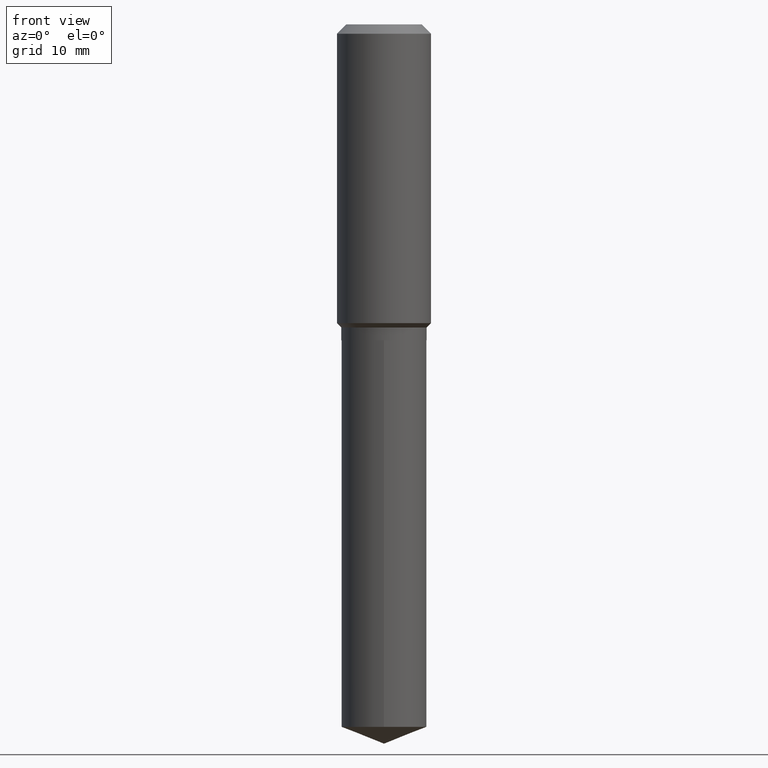
[diagram: clean part render]
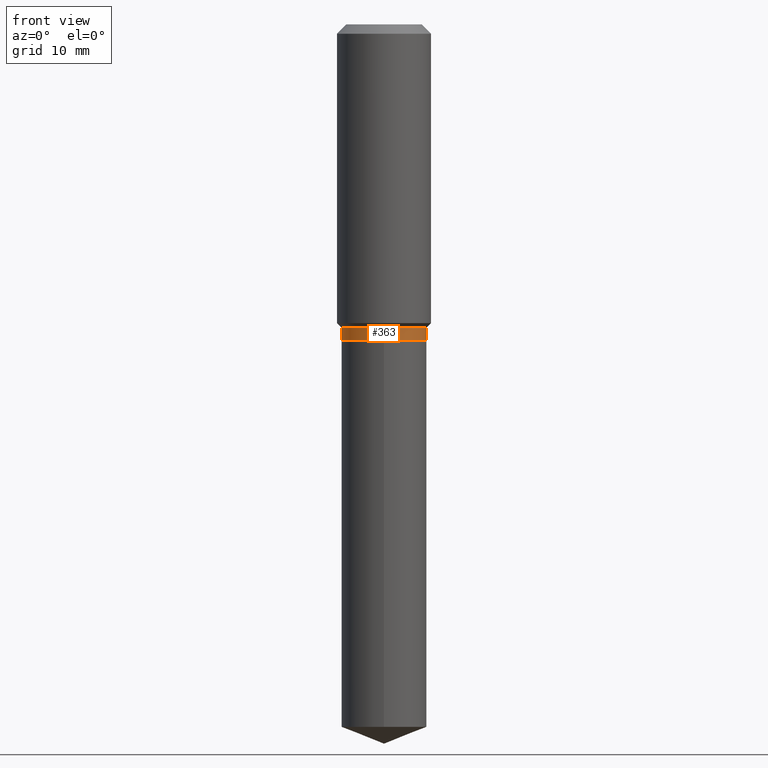
[diagram: same view with one face highlighted and labeled with its STEP entity id]
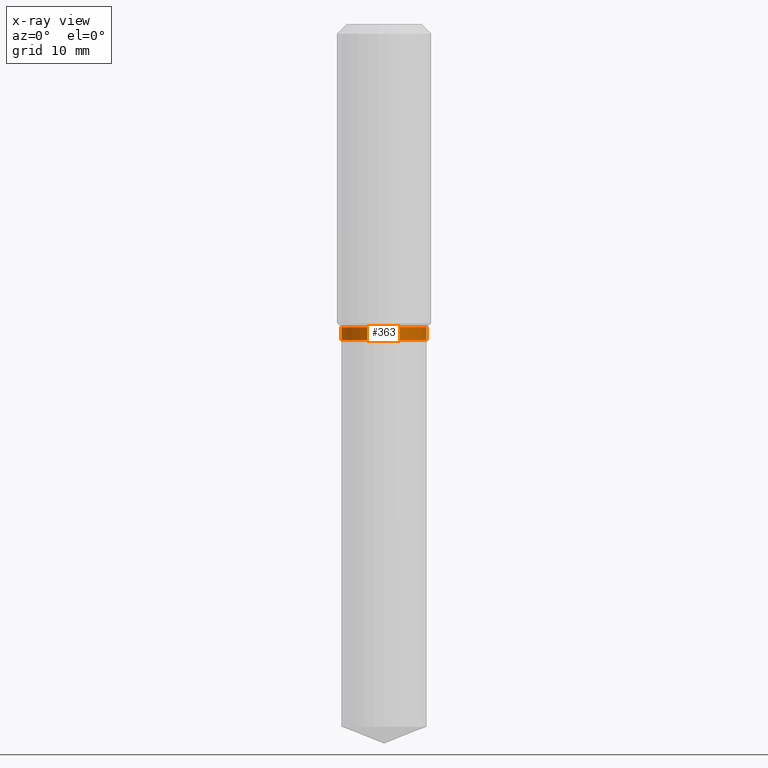
[diagram: x-ray of the same camera — body ghosted, the highlighted face saturated]
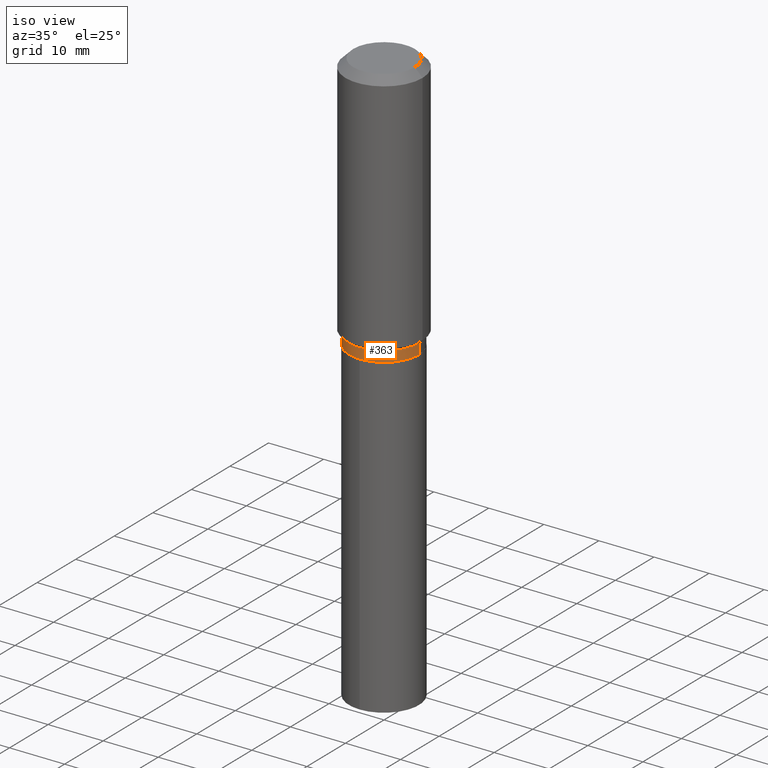
[diagram: same view with one face highlighted and labeled with its STEP entity id]
A machine part, front view. The second image highlights one B-rep face of the part: STEP entity #363.
The next image is the same camera in x-ray: the body ghosted, the highlighted face saturated — about 0% of this face is hidden behind the body in this view.
A second angle (iso view) of the same face is appended — the face is thin or edge-on in the first view.
In plain terms, the highlighted cylindrical surface (partial cylindrical patch) has radius 6.35 mm, axis along (-0, 0, 1).
Its self-contained STEP definition (entity closure, byte-faithful):
#11 = VERTEX_POINT ( 'NONE', #286 ) ;
#12 = CARTESIAN_POINT ( 'NONE',  ( 0.2500000000000000555, -8.204631998147503539E-15, -1.849900000000000322 ) ) ;
#20 = LINE ( 'NONE', #142, #196 ) ;
#37 = AXIS2_PLACEMENT_3D ( 'NONE', #321, #361, #401 ) ;
#39 = DIRECTION ( 'NONE',  ( 1.000000000000000000, -6.982962677686265133E-15, 0.000000000000000000 ) ) ;
#50 = CARTESIAN_POINT ( 'NONE',  ( 4.341685318501092485E-29, -6.198775968982121785E-15, -1.775400000000000311 ) ) ;
#62 = CYLINDRICAL_SURFACE ( 'NONE', #37, 0.2500000000000000000 ) ;
#100 = CIRCLE ( 'NONE', #367, 0.2500000000000000555 ) ;
#109 = EDGE_CURVE ( 'NONE', #11, #409, #100, .T. ) ;
#117 = CARTESIAN_POINT ( 'NONE',  ( 0.2500000000000000000, -7.944516638403687674E-15, -1.775400000000000311 ) ) ;
#118 = CARTESIAN_POINT ( 'NONE',  ( 4.523872744561885153E-29, -6.458891328725936072E-15, -1.849900000000000322 ) ) ;
#142 = CARTESIAN_POINT ( 'NONE',  ( 0.2500000000000000000, -1.745740669421566678E-15, 1.219044193948983948E-29 ) ) ;
#196 = VECTOR ( 'NONE', #396, 39.37007874015748143 ) ;
#200 = DIRECTION ( 'NONE',  ( -2.445468806185136597E-29, 3.491481338843145583E-15, 1.000000000000000000 ) ) ;
#208 = LINE ( 'NONE', #318, #360 ) ;
#209 = EDGE_CURVE ( 'NONE', #338, #329, #464, .T. ) ;
#224 = ORIENTED_EDGE ( 'NONE', *, *, #291, .F. ) ;
#231 = CARTESIAN_POINT ( 'NONE',  ( -0.2500000000000000000, -4.552476809453778464E-15, -1.775400000000000311 ) ) ;
#286 = CARTESIAN_POINT ( 'NONE',  ( -0.2500000000000000555, -4.552476809453777675E-15, -1.849900000000000322 ) ) ;
#291 = EDGE_CURVE ( 'NONE', #11, #338, #208, .T. ) ;
#293 = ORIENTED_EDGE ( 'NONE', *, *, #480, .T. ) ;
#313 = ORIENTED_EDGE ( 'NONE', *, *, #209, .F. ) ;
#318 = CARTESIAN_POINT ( 'NONE',  ( -0.2500000000000000000, 1.776356839400250465E-15, -1.229733772563726445E-29 ) ) ;
#321 = CARTESIAN_POINT ( 'NONE',  ( 0.000000000000000000, 0.000000000000000000, 0.000000000000000000 ) ) ;
#329 = VERTEX_POINT ( 'NONE', #117 ) ;
#337 = DIRECTION ( 'NONE',  ( 1.000000000000000000, -6.982962677686266711E-15, 0.000000000000000000 ) ) ;
#338 = VERTEX_POINT ( 'NONE', #231 ) ;
#354 = ORIENTED_EDGE ( 'NONE', *, *, #109, .T. ) ;
#360 = VECTOR ( 'NONE', #397, 39.37007874015748143 ) ;
#361 = DIRECTION ( 'NONE',  ( -2.445468806185136597E-29, 3.491481338843145583E-15, 1.000000000000000000 ) ) ;
#363 = ADVANCED_FACE ( 'NONE', ( #385 ), #62, .T. ) ;
#367 = AXIS2_PLACEMENT_3D ( 'NONE', #118, #413, #39 ) ;
#385 = FACE_OUTER_BOUND ( 'NONE', #393, .T. ) ;
#393 = EDGE_LOOP ( 'NONE', ( #224, #354, #293, #313 ) ) ;
#396 = DIRECTION ( 'NONE',  ( -2.445468806185136877E-29, 3.491481338843145188E-15, 1.000000000000000000 ) ) ;
#397 = DIRECTION ( 'NONE',  ( -2.445468806185136877E-29, 3.491481338843145188E-15, 1.000000000000000000 ) ) ;
#401 = DIRECTION ( 'NONE',  ( 1.000000000000000000, -6.982962677686266711E-15, 4.876176775795935793E-29 ) ) ;
#409 = VERTEX_POINT ( 'NONE', #12 ) ;
#413 = DIRECTION ( 'NONE',  ( -2.445468806185136597E-29, 3.491481338843145583E-15, 1.000000000000000000 ) ) ;
#442 = AXIS2_PLACEMENT_3D ( 'NONE', #50, #200, #337 ) ;
#464 = CIRCLE ( 'NONE', #442, 0.2500000000000000000 ) ;
#480 = EDGE_CURVE ( 'NONE', #409, #329, #20, .T. ) ;